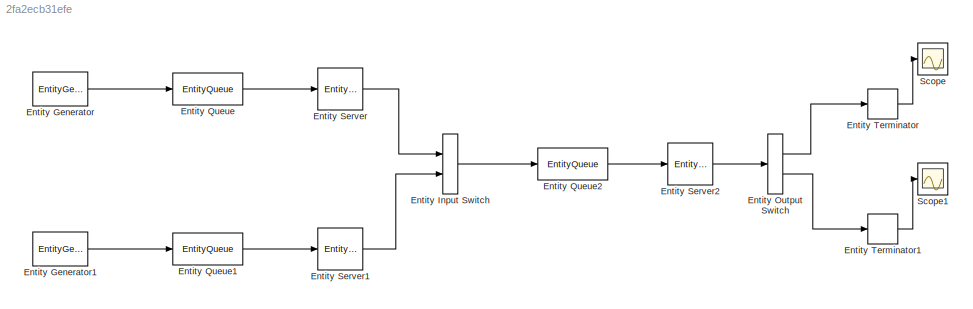
MODEL slx_2fa2ecb31efe
KIND model
CONFIG AbsTol = auto
CONFIG FixedStep = auto
CONFIG MaxStep = auto
CONFIG MinStep = auto
CONFIG RelTol = 1e-3
CONFIG SampleTimeConstraint = Unconstrained
CONFIG Solver = VariableStepAuto
CONFIG SolverMode = Auto
CONFIG SolverName = VariableStepAuto
CONFIG StartTime = 0.0
CONFIG StopTime = 10.0
BLOCK [EntityGenerator] Entity Generator
  EntityType = Structured
  EntityTypeName = Entity
  OutputPortMap = o3
  OutputPortMessageModes = m
  Ports = [0, 1]
BLOCK [EntityGenerator] Entity Generator1
  EntityType = Structured
  EntityTypeName = Entity
  OutputPortMap = o3
  OutputPortMessageModes = m
  Ports = [0, 1]
BLOCK [EntityInputSwitch] Entity Input Switch
  InputPortMap = u1,u2
  InputPortMessageModes = m,m
  OutputPortMap = o0
  OutputPortMessageModes = m
  Ports = [2, 1]
BLOCK [EntityOutputSwitch] Entity Output Switch
  InputPortMap = u1
  InputPortMessageModes = m
  OutputPortMap = o0,o1
  OutputPortMessageModes = m,m
  Ports = [1, 2]
  SwitchAttributeName = Attribute1
BLOCK [EntityQueue] Entity Queue
  InputPortMap = u0
  InputPortMessageModes = m
  OutputPortMap = o5
  OutputPortMessageModes = m
  Ports = [1, 1]
BLOCK [EntityQueue] Entity Queue1
  InputPortMap = u0
  InputPortMessageModes = m
  OutputPortMap = o5
  OutputPortMessageModes = m
  Ports = [1, 1]
BLOCK [EntityQueue] Entity Queue2
  InputPortMap = u0
  InputPortMessageModes = m
  OutputPortMap = o5
  OutputPortMessageModes = m
  Ports = [1, 1]
BLOCK [EntityServer] Entity Server
  Capacity = 1
  InputPortMap = u2
  InputPortMessageModes = m
  OutputPortMap = o9
  OutputPortMessageModes = m
  Ports = [1, 1]
BLOCK [EntityServer] Entity Server1
  Capacity = 1
  InputPortMap = u2
  InputPortMessageModes = m
  OutputPortMap = o9
  OutputPortMessageModes = m
  Ports = [1, 1]
BLOCK [EntityServer] Entity Server2
  Capacity = 1
  InputPortMap = u2
  InputPortMessageModes = m
  OutputPortMap = o9
  OutputPortMessageModes = m
  Ports = [1, 1]
BLOCK [EntityTerminator] Entity Terminator
  InputPortMap = u0
  InputPortMessageModes = m
  NumberEntitiesArrived = on
  OutputPortMap = o0
  Ports = [1, 1]
BLOCK [EntityTerminator] Entity Terminator1
  InputPortMap = u0
  InputPortMessageModes = m
  NumberEntitiesArrived = on
  OutputPortMap = o0
  Ports = [1, 1]
BLOCK [Scope] Scope
  Ports = [1]
  ScopeSpecificationString = C++SS(StrPVP('SaveName','ScopeData'))
BLOCK [Scope] Scope1
  Ports = [1]
  ScopeSpecificationString = C++SS(StrPVP('SaveName','ScopeData'),StrPVP('SaveName','ScopeData1'))
LINE Entity Generator1:1 -> Entity Queue1:1
LINE Entity Generator:1 -> Entity Queue:1
LINE Entity Input Switch:1 -> Entity Queue2:1
LINE Entity Output Switch:1 -> Entity Terminator:1
LINE Entity Output Switch:2 -> Entity Terminator1:1
LINE Entity Queue1:1 -> Entity Server1:1
LINE Entity Queue2:1 -> Entity Server2:1
LINE Entity Queue:1 -> Entity Server:1
LINE Entity Server1:1 -> Entity Input Switch:2
LINE Entity Server2:1 -> Entity Output Switch:1
LINE Entity Server:1 -> Entity Input Switch:1
LINE Entity Terminator1:1 -> Scope1:1
LINE Entity Terminator:1 -> Scope:1
